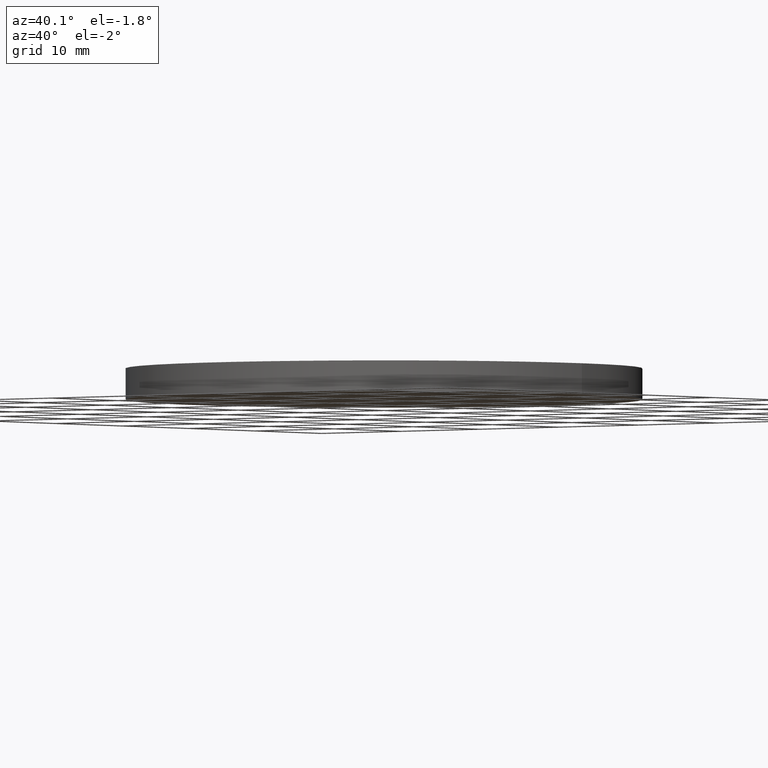
[diagram: clean part render]
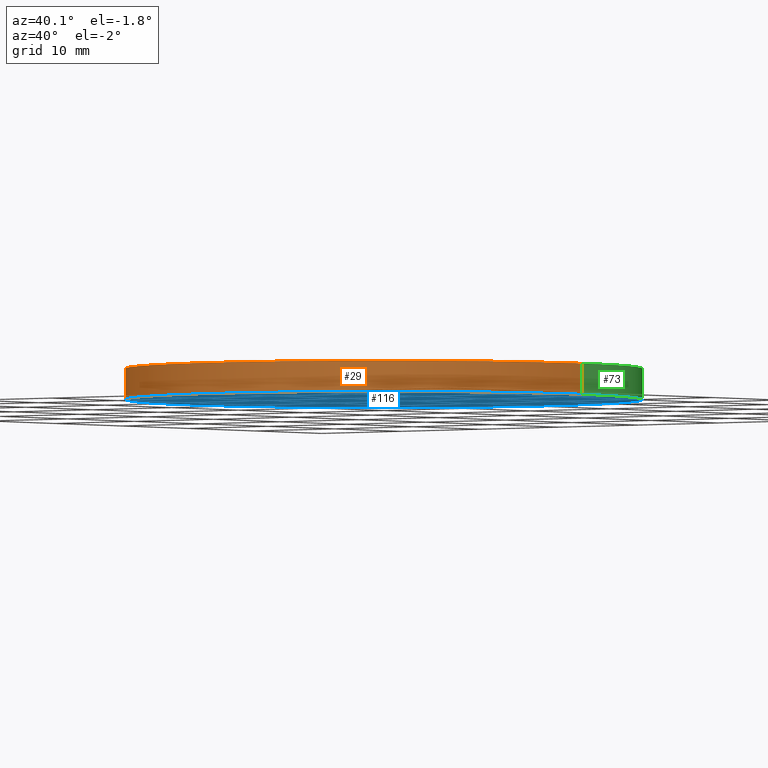
[diagram: same view with three faces highlighted in distinct colors, each labeled with its STEP entity id]
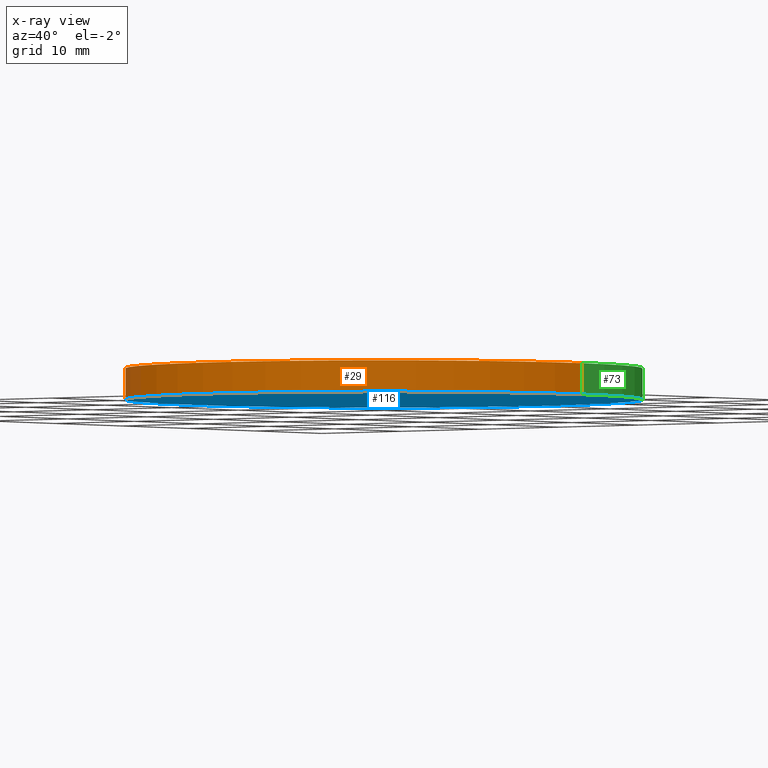
[diagram: x-ray of the same camera — body ghosted, the three highlighted faces saturated]
A machine part, auxiliary view with three faces highlighted in distinct colors.
The next image is the same camera in x-ray (body ghosted, the three faces saturated) — at least one of them is partly hidden behind the body in this view.
Their STEP definitions:

[orange] entity #29 — the highlighted cylindrical surface (partial cylindrical patch) has radius 25 mm, axis along (-0, -0, -1).
#3 = LINE ( 'NONE', #98, #17 ) ;
#7 = VECTOR ( 'NONE', #25, 1000.000000000000000 ) ;
#8 = CIRCLE ( 'NONE', #125, 25.00000000000000000 ) ;
#11 = DIRECTION ( 'NONE',  ( 1.000000000000000000, 0.0000000000000000000, 0.0000000000000000000 ) ) ;
#15 = CARTESIAN_POINT ( 'NONE',  ( -25.00000000000000000, 0.0000000000000000000, 0.0000000000000000000 ) ) ;
#17 = VECTOR ( 'NONE', #78, 1000.000000000000000 ) ;
#22 = EDGE_CURVE ( 'NONE', #109, #134, #3, .T. ) ;
#25 = DIRECTION ( 'NONE',  ( -0.0000000000000000000, -0.0000000000000000000, -1.000000000000000000 ) ) ;
#27 = ORIENTED_EDGE ( 'NONE', *, *, #32, .T. ) ;
#29 = ADVANCED_FACE ( 'NONE', ( #67 ), #37, .T. ) ;
#32 = EDGE_CURVE ( 'NONE', #39, #94, #57, .T. ) ;
#37 = CYLINDRICAL_SURFACE ( 'NONE', #85, 25.00000000000000000 ) ;
#39 = VERTEX_POINT ( 'NONE', #50 ) ;
#42 = DIRECTION ( 'NONE',  ( 1.000000000000000000, 0.0000000000000000000, 0.0000000000000000000 ) ) ;
#47 = ORIENTED_EDGE ( 'NONE', *, *, #22, .F. ) ;
#49 = EDGE_LOOP ( 'NONE', ( #47, #56, #27, #83 ) ) ;
#50 = CARTESIAN_POINT ( 'NONE',  ( -25.00000000000000000, 0.0000000000000000000, 3.000000000000000000 ) ) ;
#52 = CARTESIAN_POINT ( 'NONE',  ( 25.00000000000000000, 3.061616997868383000E-015, 3.000000000000000000 ) ) ;
#54 = DIRECTION ( 'NONE',  ( -1.000000000000000000, 0.0000000000000000000, 0.0000000000000000000 ) ) ;
#56 = ORIENTED_EDGE ( 'NONE', *, *, #112, .F. ) ;
#57 = LINE ( 'NONE', #100, #7 ) ;
#60 = AXIS2_PLACEMENT_3D ( 'NONE', #101, #132, #42 ) ;
#67 = FACE_OUTER_BOUND ( 'NONE', #49, .T. ) ;
#70 = EDGE_CURVE ( 'NONE', #94, #134, #121, .T. ) ;
#77 = CARTESIAN_POINT ( 'NONE',  ( 0.0000000000000000000, 0.0000000000000000000, 3.000000000000000000 ) ) ;
#78 = DIRECTION ( 'NONE',  ( -0.0000000000000000000, -0.0000000000000000000, -1.000000000000000000 ) ) ;
#83 = ORIENTED_EDGE ( 'NONE', *, *, #70, .T. ) ;
#85 = AXIS2_PLACEMENT_3D ( 'NONE', #107, #131, #54 ) ;
#94 = VERTEX_POINT ( 'NONE', #15 ) ;
#98 = CARTESIAN_POINT ( 'NONE',  ( 25.00000000000000000, 3.061616997868383000E-015, 3.000000000000000000 ) ) ;
#100 = CARTESIAN_POINT ( 'NONE',  ( -25.00000000000000000, 0.0000000000000000000, 3.000000000000000000 ) ) ;
#101 = CARTESIAN_POINT ( 'NONE',  ( 0.0000000000000000000, 0.0000000000000000000, 0.0000000000000000000 ) ) ;
#106 = CARTESIAN_POINT ( 'NONE',  ( 25.00000000000000000, 3.061616997868383000E-015, 0.0000000000000000000 ) ) ;
#107 = CARTESIAN_POINT ( 'NONE',  ( 0.0000000000000000000, 0.0000000000000000000, 3.000000000000000000 ) ) ;
#109 = VERTEX_POINT ( 'NONE', #52 ) ;
#112 = EDGE_CURVE ( 'NONE', #39, #109, #8, .T. ) ;
#121 = CIRCLE ( 'NONE', #60, 25.00000000000000000 ) ;
#125 = AXIS2_PLACEMENT_3D ( 'NONE', #77, #140, #11 ) ;
#131 = DIRECTION ( 'NONE',  ( -0.0000000000000000000, -0.0000000000000000000, -1.000000000000000000 ) ) ;
#132 = DIRECTION ( 'NONE',  ( 0.0000000000000000000, 0.0000000000000000000, 1.000000000000000000 ) ) ;
#134 = VERTEX_POINT ( 'NONE', #106 ) ;
#140 = DIRECTION ( 'NONE',  ( 0.0000000000000000000, 0.0000000000000000000, 1.000000000000000000 ) ) ;

[blue] entity #116 — the highlighted planar face has unit normal (0, 0, 1).
#10 = DIRECTION ( 'NONE',  ( 0.0000000000000000000, 0.0000000000000000000, 1.000000000000000000 ) ) ;
#15 = CARTESIAN_POINT ( 'NONE',  ( -25.00000000000000000, 0.0000000000000000000, 0.0000000000000000000 ) ) ;
#21 = DIRECTION ( 'NONE',  ( 0.0000000000000000000, 0.0000000000000000000, 1.000000000000000000 ) ) ;
#28 = AXIS2_PLACEMENT_3D ( 'NONE', #61, #21, #88 ) ;
#42 = DIRECTION ( 'NONE',  ( 1.000000000000000000, 0.0000000000000000000, 0.0000000000000000000 ) ) ;
#60 = AXIS2_PLACEMENT_3D ( 'NONE', #101, #132, #42 ) ;
#61 = CARTESIAN_POINT ( 'NONE',  ( 0.0000000000000000000, 0.0000000000000000000, 0.0000000000000000000 ) ) ;
#63 = CIRCLE ( 'NONE', #76, 25.00000000000000000 ) ;
#70 = EDGE_CURVE ( 'NONE', #94, #134, #121, .T. ) ;
#75 = PLANE ( 'NONE',  #28 ) ;
#76 = AXIS2_PLACEMENT_3D ( 'NONE', #115, #10, #138 ) ;
#88 = DIRECTION ( 'NONE',  ( 1.000000000000000000, 0.0000000000000000000, -0.0000000000000000000 ) ) ;
#92 = ORIENTED_EDGE ( 'NONE', *, *, #70, .F. ) ;
#94 = VERTEX_POINT ( 'NONE', #15 ) ;
#97 = ORIENTED_EDGE ( 'NONE', *, *, #113, .F. ) ;
#101 = CARTESIAN_POINT ( 'NONE',  ( 0.0000000000000000000, 0.0000000000000000000, 0.0000000000000000000 ) ) ;
#105 = EDGE_LOOP ( 'NONE', ( #92, #97 ) ) ;
#106 = CARTESIAN_POINT ( 'NONE',  ( 25.00000000000000000, 3.061616997868383000E-015, 0.0000000000000000000 ) ) ;
#113 = EDGE_CURVE ( 'NONE', #134, #94, #63, .T. ) ;
#115 = CARTESIAN_POINT ( 'NONE',  ( 0.0000000000000000000, 0.0000000000000000000, 0.0000000000000000000 ) ) ;
#116 = ADVANCED_FACE ( 'NONE', ( #127 ), #75, .F. ) ;
#121 = CIRCLE ( 'NONE', #60, 25.00000000000000000 ) ;
#127 = FACE_OUTER_BOUND ( 'NONE', #105, .T. ) ;
#132 = DIRECTION ( 'NONE',  ( 0.0000000000000000000, 0.0000000000000000000, 1.000000000000000000 ) ) ;
#134 = VERTEX_POINT ( 'NONE', #106 ) ;
#138 = DIRECTION ( 'NONE',  ( 1.000000000000000000, 0.0000000000000000000, 0.0000000000000000000 ) ) ;

[green] entity #73 — the highlighted cylindrical surface (partial cylindrical patch) has radius 25 mm, axis along (-0, -0, -1).
#3 = LINE ( 'NONE', #98, #17 ) ;
#4 = DIRECTION ( 'NONE',  ( -1.000000000000000000, 0.0000000000000000000, 0.0000000000000000000 ) ) ;
#5 = CARTESIAN_POINT ( 'NONE',  ( 0.0000000000000000000, 0.0000000000000000000, 3.000000000000000000 ) ) ;
#7 = VECTOR ( 'NONE', #25, 1000.000000000000000 ) ;
#10 = DIRECTION ( 'NONE',  ( 0.0000000000000000000, 0.0000000000000000000, 1.000000000000000000 ) ) ;
#15 = CARTESIAN_POINT ( 'NONE',  ( -25.00000000000000000, 0.0000000000000000000, 0.0000000000000000000 ) ) ;
#17 = VECTOR ( 'NONE', #78, 1000.000000000000000 ) ;
#22 = EDGE_CURVE ( 'NONE', #109, #134, #3, .T. ) ;
#24 = DIRECTION ( 'NONE',  ( 1.000000000000000000, 0.0000000000000000000, 0.0000000000000000000 ) ) ;
#25 = DIRECTION ( 'NONE',  ( -0.0000000000000000000, -0.0000000000000000000, -1.000000000000000000 ) ) ;
#32 = EDGE_CURVE ( 'NONE', #39, #94, #57, .T. ) ;
#33 = DIRECTION ( 'NONE',  ( 0.0000000000000000000, 0.0000000000000000000, 1.000000000000000000 ) ) ;
#35 = ORIENTED_EDGE ( 'NONE', *, *, #113, .T. ) ;
#39 = VERTEX_POINT ( 'NONE', #50 ) ;
#50 = CARTESIAN_POINT ( 'NONE',  ( -25.00000000000000000, 0.0000000000000000000, 3.000000000000000000 ) ) ;
#51 = CYLINDRICAL_SURFACE ( 'NONE', #68, 25.00000000000000000 ) ;
#52 = CARTESIAN_POINT ( 'NONE',  ( 25.00000000000000000, 3.061616997868383000E-015, 3.000000000000000000 ) ) ;
#57 = LINE ( 'NONE', #100, #7 ) ;
#63 = CIRCLE ( 'NONE', #76, 25.00000000000000000 ) ;
#68 = AXIS2_PLACEMENT_3D ( 'NONE', #5, #119, #4 ) ;
#73 = ADVANCED_FACE ( 'NONE', ( #135 ), #51, .T. ) ;
#74 = CIRCLE ( 'NONE', #122, 25.00000000000000000 ) ;
#76 = AXIS2_PLACEMENT_3D ( 'NONE', #115, #10, #138 ) ;
#78 = DIRECTION ( 'NONE',  ( -0.0000000000000000000, -0.0000000000000000000, -1.000000000000000000 ) ) ;
#82 = EDGE_CURVE ( 'NONE', #109, #39, #74, .T. ) ;
#94 = VERTEX_POINT ( 'NONE', #15 ) ;
#98 = CARTESIAN_POINT ( 'NONE',  ( 25.00000000000000000, 3.061616997868383000E-015, 3.000000000000000000 ) ) ;
#100 = CARTESIAN_POINT ( 'NONE',  ( -25.00000000000000000, 0.0000000000000000000, 3.000000000000000000 ) ) ;
#103 = ORIENTED_EDGE ( 'NONE', *, *, #32, .F. ) ;
#106 = CARTESIAN_POINT ( 'NONE',  ( 25.00000000000000000, 3.061616997868383000E-015, 0.0000000000000000000 ) ) ;
#108 = CARTESIAN_POINT ( 'NONE',  ( 0.0000000000000000000, 0.0000000000000000000, 3.000000000000000000 ) ) ;
#109 = VERTEX_POINT ( 'NONE', #52 ) ;
#113 = EDGE_CURVE ( 'NONE', #134, #94, #63, .T. ) ;
#114 = ORIENTED_EDGE ( 'NONE', *, *, #22, .T. ) ;
#115 = CARTESIAN_POINT ( 'NONE',  ( 0.0000000000000000000, 0.0000000000000000000, 0.0000000000000000000 ) ) ;
#119 = DIRECTION ( 'NONE',  ( -0.0000000000000000000, -0.0000000000000000000, -1.000000000000000000 ) ) ;
#120 = EDGE_LOOP ( 'NONE', ( #133, #114, #35, #103 ) ) ;
#122 = AXIS2_PLACEMENT_3D ( 'NONE', #108, #33, #24 ) ;
#133 = ORIENTED_EDGE ( 'NONE', *, *, #82, .F. ) ;
#134 = VERTEX_POINT ( 'NONE', #106 ) ;
#135 = FACE_OUTER_BOUND ( 'NONE', #120, .T. ) ;
#138 = DIRECTION ( 'NONE',  ( 1.000000000000000000, 0.0000000000000000000, 0.0000000000000000000 ) ) ;